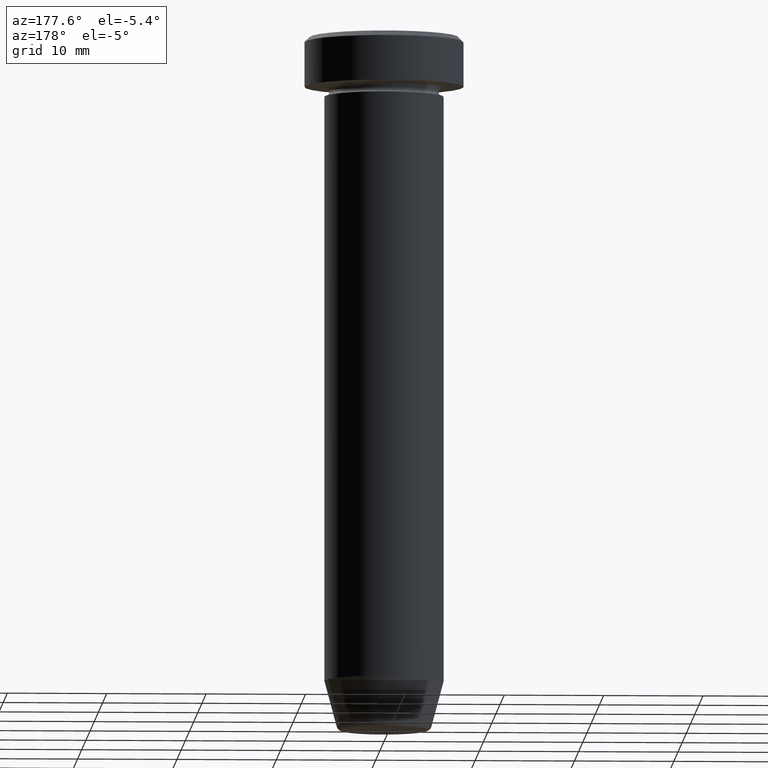
[diagram: clean part render]
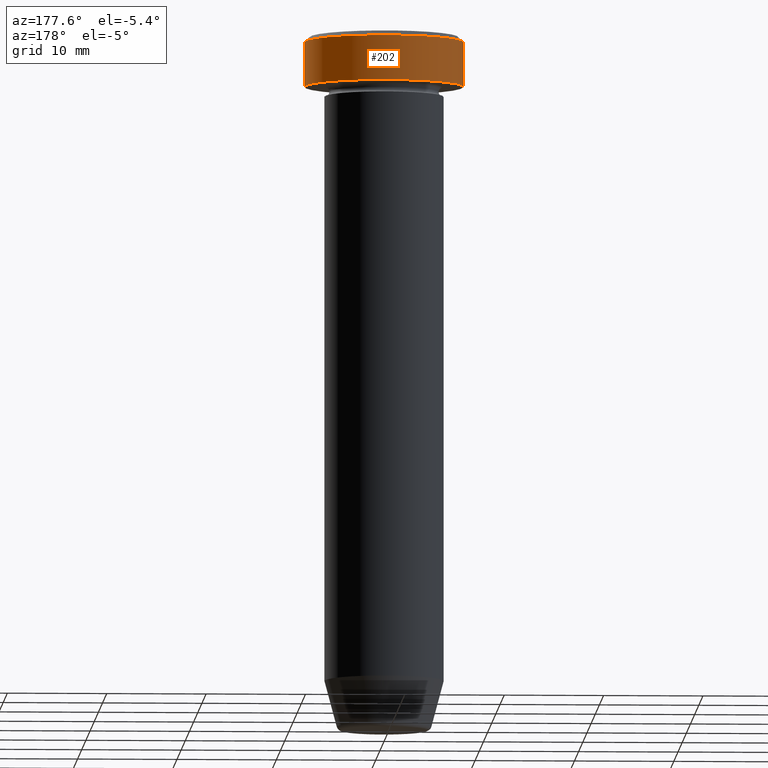
[diagram: same view with one face highlighted and labeled with its STEP entity id]
A machine part, auxiliary view. The second image highlights one B-rep face of the part: STEP entity #202.
In plain terms, the highlighted cylindrical surface (partial cylindrical patch) has radius 8 mm, axis along (-0, -0, 1).
Its self-contained STEP definition (entity closure, byte-faithful):
#6 = EDGE_CURVE ( 'NONE', #58, #16, #518, .T. ) ;
#16 = VERTEX_POINT ( 'NONE', #255 ) ;
#26 = CARTESIAN_POINT ( 'NONE',  ( 8.000000000000000000, 0.000000000000000000, -5.000000000000000000 ) ) ;
#27 = AXIS2_PLACEMENT_3D ( 'NONE', #481, #342, #339 ) ;
#33 = FACE_OUTER_BOUND ( 'NONE', #594, .T. ) ;
#58 = VERTEX_POINT ( 'NONE', #26 ) ;
#64 = EDGE_CURVE ( 'NONE', #235, #16, #475, .T. ) ;
#131 = CARTESIAN_POINT ( 'NONE',  ( 0.000000000000000000, 0.000000000000000000, 0.000000000000000000 ) ) ;
#143 = DIRECTION ( 'NONE',  ( -0.000000000000000000, -0.000000000000000000, 1.000000000000000000 ) ) ;
#173 = VECTOR ( 'NONE', #413, 1000.000000000000000 ) ;
#202 = ADVANCED_FACE ( 'NONE', ( #33 ), #219, .T. ) ;
#214 = ORIENTED_EDGE ( 'NONE', *, *, #370, .T. ) ;
#219 = CYLINDRICAL_SURFACE ( 'NONE', #501, 8.000000000000000000 ) ;
#220 = ORIENTED_EDGE ( 'NONE', *, *, #64, .T. ) ;
#235 = VERTEX_POINT ( 'NONE', #443 ) ;
#241 = VERTEX_POINT ( 'NONE', #307 ) ;
#255 = CARTESIAN_POINT ( 'NONE',  ( 8.000000000000000000, 0.000000000000000000, -0.4999999999999935052 ) ) ;
#281 = CIRCLE ( 'NONE', #27, 8.000000000000000000 ) ;
#307 = CARTESIAN_POINT ( 'NONE',  ( -8.000000000000000000, 9.797174393178825657E-16, -5.000000000000000000 ) ) ;
#339 = DIRECTION ( 'NONE',  ( 1.000000000000000000, 0.000000000000000000, 0.000000000000000000 ) ) ;
#342 = DIRECTION ( 'NONE',  ( -0.000000000000000000, -0.000000000000000000, 1.000000000000000000 ) ) ;
#351 = CARTESIAN_POINT ( 'NONE',  ( 0.000000000000000000, 0.000000000000000000, -0.4999999999999935052 ) ) ;
#355 = DIRECTION ( 'NONE',  ( -0.000000000000000000, -0.000000000000000000, 1.000000000000000000 ) ) ;
#368 = ORIENTED_EDGE ( 'NONE', *, *, #6, .F. ) ;
#370 = EDGE_CURVE ( 'NONE', #241, #235, #473, .T. ) ;
#383 = CARTESIAN_POINT ( 'NONE',  ( -8.000000000000000000, 9.797174393178825657E-16, 0.000000000000000000 ) ) ;
#405 = ORIENTED_EDGE ( 'NONE', *, *, #508, .T. ) ;
#406 = VECTOR ( 'NONE', #143, 1000.000000000000000 ) ;
#413 = DIRECTION ( 'NONE',  ( -0.000000000000000000, -0.000000000000000000, 1.000000000000000000 ) ) ;
#443 = CARTESIAN_POINT ( 'NONE',  ( -8.000000000000000000, 9.797174393178825657E-16, -0.4999999999999935052 ) ) ;
#473 = LINE ( 'NONE', #383, #173 ) ;
#475 = CIRCLE ( 'NONE', #496, 8.000000000000000000 ) ;
#481 = CARTESIAN_POINT ( 'NONE',  ( 0.000000000000000000, 0.000000000000000000, -5.000000000000000000 ) ) ;
#483 = DIRECTION ( 'NONE',  ( 1.000000000000000000, 0.000000000000000000, 0.000000000000000000 ) ) ;
#490 = DIRECTION ( 'NONE',  ( 0.000000000000000000, 0.000000000000000000, -1.000000000000000000 ) ) ;
#496 = AXIS2_PLACEMENT_3D ( 'NONE', #351, #490, #483 ) ;
#501 = AXIS2_PLACEMENT_3D ( 'NONE', #131, #355, #502 ) ;
#502 = DIRECTION ( 'NONE',  ( 1.000000000000000000, 0.000000000000000000, 0.000000000000000000 ) ) ;
#508 = EDGE_CURVE ( 'NONE', #58, #241, #281, .T. ) ;
#518 = LINE ( 'NONE', #572, #406 ) ;
#572 = CARTESIAN_POINT ( 'NONE',  ( 8.000000000000000000, 0.000000000000000000, 0.000000000000000000 ) ) ;
#594 = EDGE_LOOP ( 'NONE', ( #405, #214, #220, #368 ) ) ;